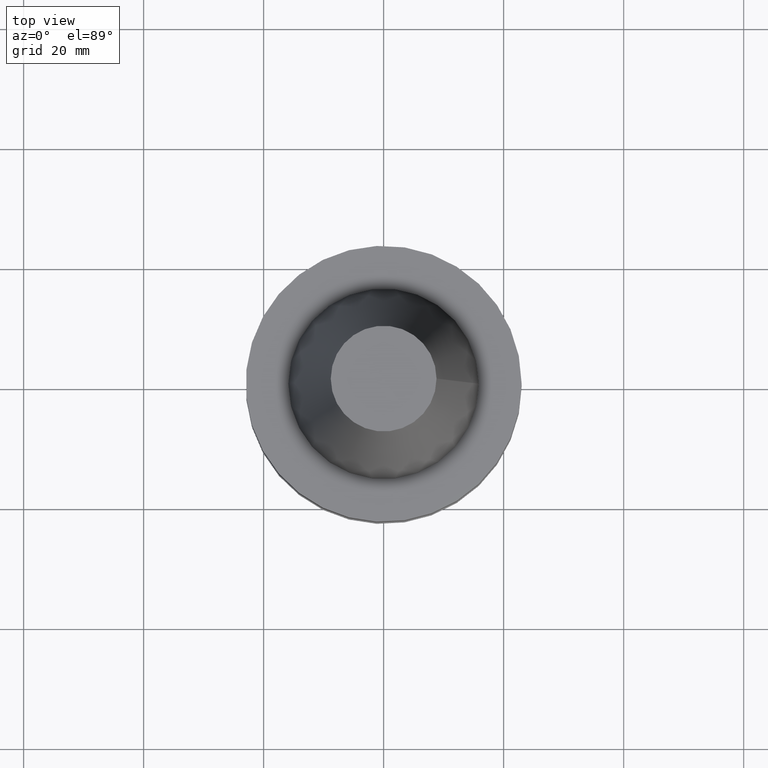
[diagram: clean part render]
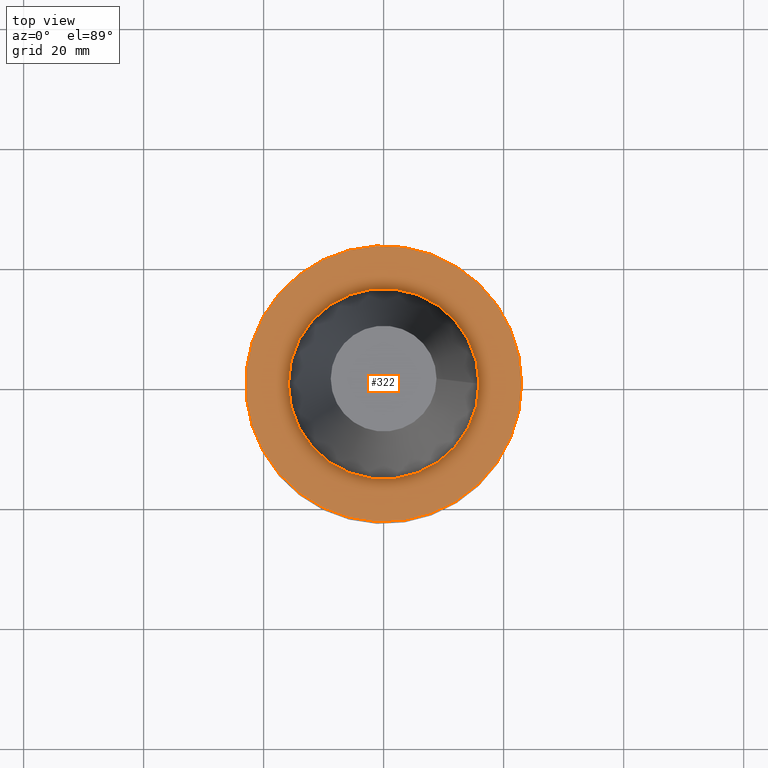
[diagram: same view with one face highlighted and labeled with its STEP entity id]
A machine part, top view. The second image highlights one B-rep face of the part: STEP entity #322.
In plain terms, the highlighted planar face has unit normal (0, 0, -1).
Its self-contained STEP definition (entity closure, byte-faithful):
#2 = CARTESIAN_POINT ( 'NONE',  ( 0.000000000000000000, 0.000000000000000000, -1.000000000000000888 ) ) ;
#31 = AXIS2_PLACEMENT_3D ( 'NONE', #2, #50, #672 ) ;
#38 = VERTEX_POINT ( 'NONE', #415 ) ;
#50 = DIRECTION ( 'NONE',  ( -0.000000000000000000, -0.000000000000000000, 1.000000000000000000 ) ) ;
#56 = AXIS2_PLACEMENT_3D ( 'NONE', #663, #312, #610 ) ;
#98 = CIRCLE ( 'NONE', #31, 15.87500000000000000 ) ;
#160 = DIRECTION ( 'NONE',  ( 1.000000000000000000, 0.000000000000000000, 0.000000000000000000 ) ) ;
#166 = CARTESIAN_POINT ( 'NONE',  ( 0.000000000000000000, 0.000000000000000000, -1.000000000000000888 ) ) ;
#212 = CIRCLE ( 'NONE', #623, 22.99999999999999645 ) ;
#254 = FACE_BOUND ( 'NONE', #424, .T. ) ;
#260 = VERTEX_POINT ( 'NONE', #651 ) ;
#262 = FACE_OUTER_BOUND ( 'NONE', #321, .T. ) ;
#312 = DIRECTION ( 'NONE',  ( 0.000000000000000000, 0.000000000000000000, -1.000000000000000000 ) ) ;
#321 = EDGE_LOOP ( 'NONE', ( #625 ) ) ;
#322 = ADVANCED_FACE ( 'NONE', ( #254, #262 ), #617, .F. ) ;
#415 = CARTESIAN_POINT ( 'NONE',  ( 15.87500000000000000, 0.000000000000000000, -1.000000000000000888 ) ) ;
#424 = EDGE_LOOP ( 'NONE', ( #611 ) ) ;
#439 = DIRECTION ( 'NONE',  ( -0.000000000000000000, -0.000000000000000000, 1.000000000000000000 ) ) ;
#444 = EDGE_CURVE ( 'NONE', #260, #260, #212, .T. ) ;
#493 = EDGE_CURVE ( 'NONE', #38, #38, #98, .T. ) ;
#610 = DIRECTION ( 'NONE',  ( -1.000000000000000000, 0.000000000000000000, -0.000000000000000000 ) ) ;
#611 = ORIENTED_EDGE ( 'NONE', *, *, #493, .F. ) ;
#617 = PLANE ( 'NONE',  #56 ) ;
#623 = AXIS2_PLACEMENT_3D ( 'NONE', #166, #439, #160 ) ;
#625 = ORIENTED_EDGE ( 'NONE', *, *, #444, .T. ) ;
#651 = CARTESIAN_POINT ( 'NONE',  ( 22.99999999999999645, 0.000000000000000000, -1.000000000000000888 ) ) ;
#663 = CARTESIAN_POINT ( 'NONE',  ( 0.000000000000000000, 22.99999999999999645, -0.9999999999999995559 ) ) ;
#672 = DIRECTION ( 'NONE',  ( 1.000000000000000000, 0.000000000000000000, 0.000000000000000000 ) ) ;